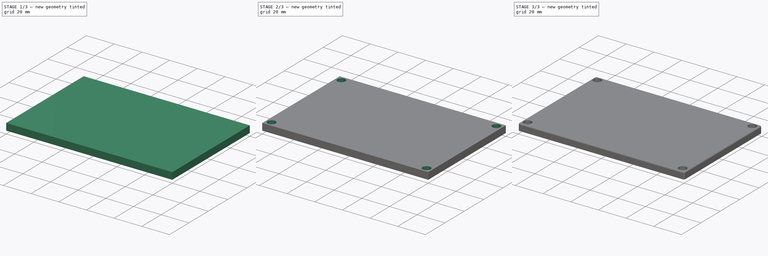
[diagram: build sequence overview — one tinted view per stage of 3, left to right]
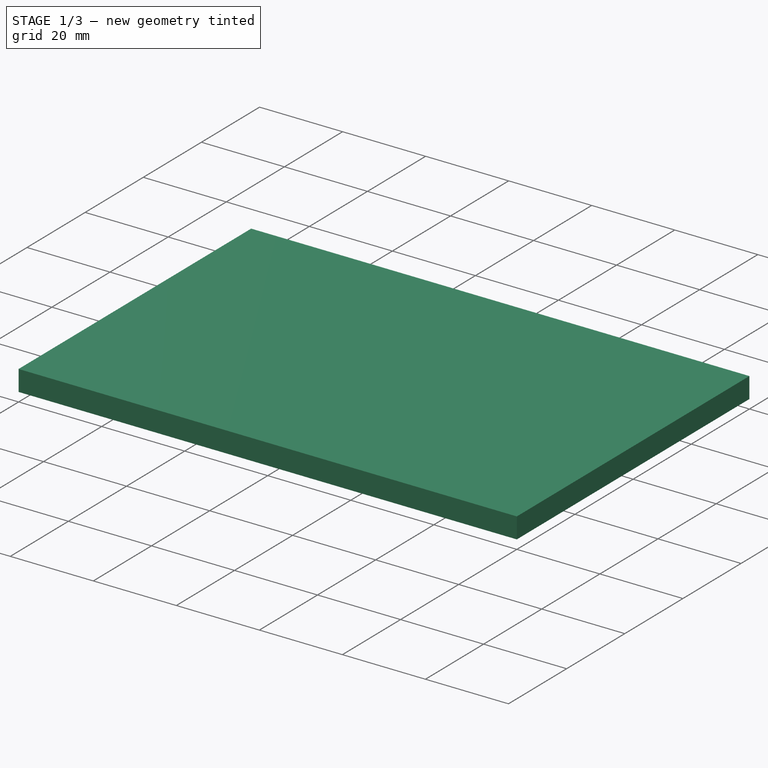
[diagram: stage 1 of 3 — iso view after this stage's code; geometry added in this stage tinted green]
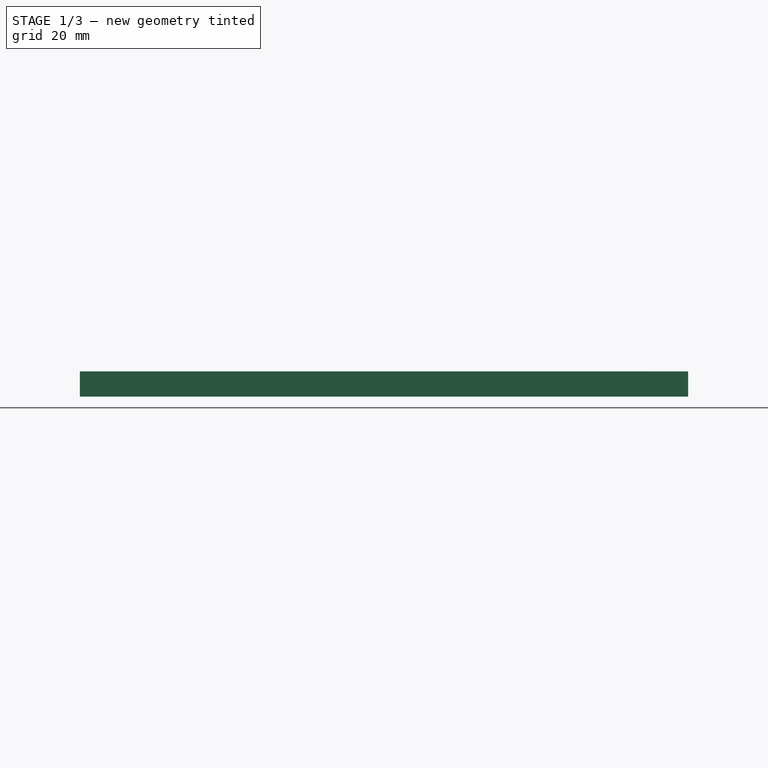
[diagram: stage 1 of 3 — front view after this stage's code; geometry added in this stage tinted green]
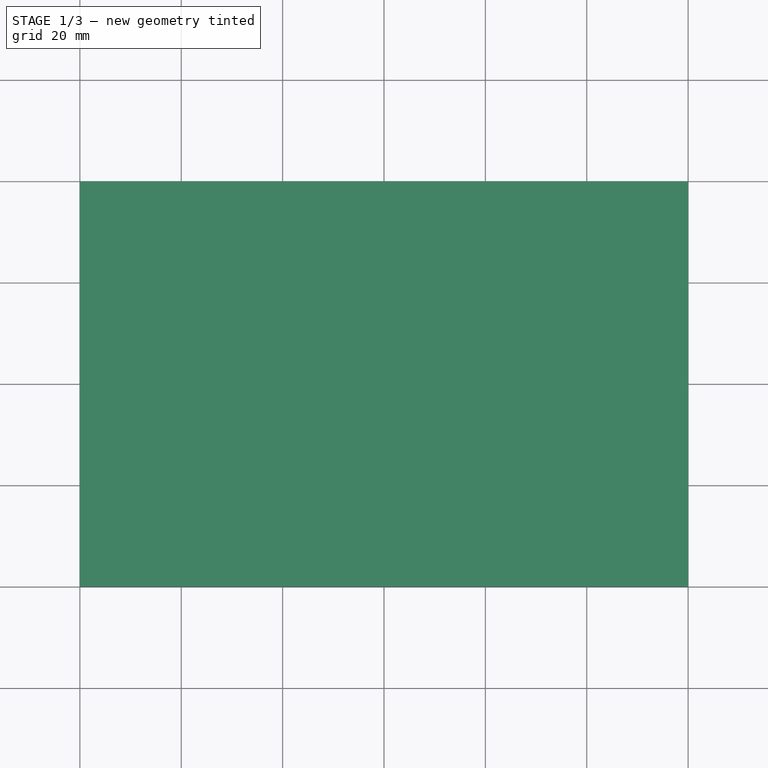
[diagram: stage 1 of 3 — top view after this stage's code; geometry added in this stage tinted green]
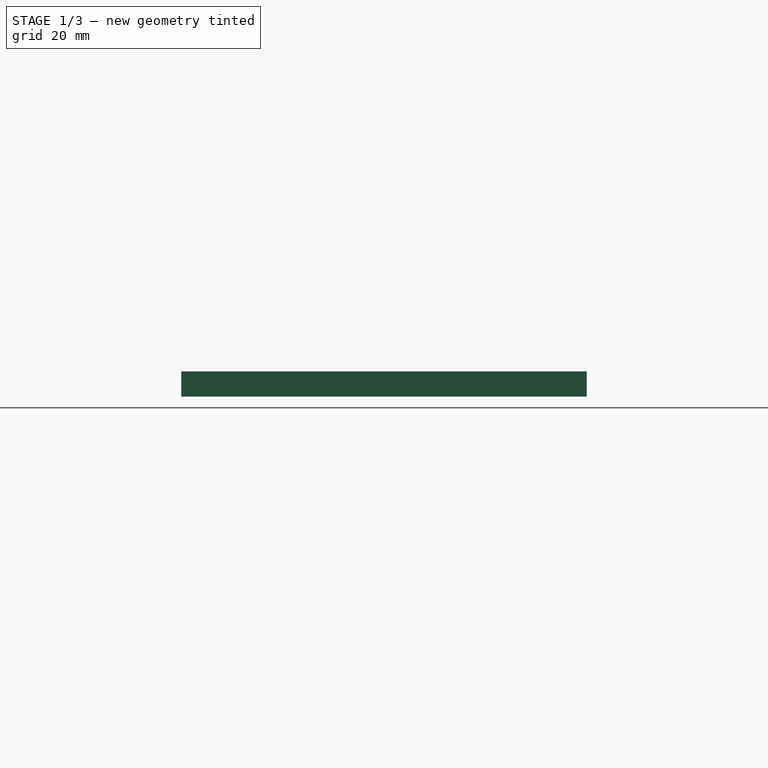
[diagram: stage 1 of 3 — right view after this stage's code; geometry added in this stage tinted green]
FCSTD DOCUMENT  (FreeCAD 0.18R4 (GitTag))
Label: case top
License: All rights reserved
LicenseURL: http://en.wikipedia.org/wiki/All_rights_reserved
objects: Sketcher::SketchObject×4, PartDesign::Pad×2, PartDesign::Pocket×2, PartDesign::Fillet×1, PartDesign::Body×1
note: 14 computed .brp shape members not serialized (recipe doc carries the construction recipe); baked Part::Feature solids carry a one-line shape summary decoded from their .brp

FEATURE [Sketcher::SketchObject] Sketch
  MapMode = 5
  Support = -> [XY_Plane]
  sketch-geometry (4):
    g0: LineSegment StartX=-60 StartY=40 StartZ=0 EndX=60 EndY=40 EndZ=0
    g1: LineSegment StartX=60 StartY=40 StartZ=0 EndX=60 EndY=-40 EndZ=0
    g2: LineSegment StartX=60 StartY=-40 StartZ=0 EndX=-60 EndY=-40 EndZ=0
    g3: LineSegment StartX=-60 StartY=-40 StartZ=0 EndX=-60 EndY=40 EndZ=0
  constraints (11):
    c: Coincident(g0,g1)
    c: Coincident(g1,g2)
    c: Coincident(g2,g3)
    c: Coincident(g3,g0)
    c: Horizontal(g0)
    c: Horizontal(g2)
    c: Vertical(g1)
    c: Vertical(g3)
    c: DistanceY(g3,g3) = 80
    c: DistanceX(g0,g0) = 120
    c: Symmetric(g0,g1,g-1)
FEATURE [PartDesign::Pad] Pad  label="Main Body"
  Length = 5
  Length2 = 100
  Profile = -> Sketch
  Type = 0
FEATURE [Sketcher::SketchObject] Sketch001
  MapMode = 5
  Placement = pos=(0,0,0) rot=(1,0,0;3.14159rad)
  Support = -> [Pad]
  sketch-geometry (12):
    g0: LineSegment StartX=56.1 StartY=29.6 StartZ=0 EndX=49.6 EndY=36.1 EndZ=0
    g1: LineSegment StartX=49.6 StartY=36.1 StartZ=0 EndX=-49.6 EndY=36.1 EndZ=0
    g2: LineSegment StartX=-49.6 StartY=36.1 StartZ=0 EndX=-56.1 EndY=29.6 EndZ=0
    g3: LineSegment StartX=-56.1 StartY=29.6 StartZ=0 EndX=-56.1 EndY=-29.6 EndZ=0
    g4: LineSegment StartX=-56.1 StartY=-29.6 StartZ=0 EndX=-49.6 EndY=-36.1 EndZ=0
    g5: LineSegment StartX=-49.6 StartY=-36.1 StartZ=0 EndX=49.6 EndY=-36.1 EndZ=0
    g6: LineSegment StartX=49.6 StartY=-36.1 StartZ=0 EndX=56.1 EndY=-29.6 EndZ=0
    g7: LineSegment StartX=56.1 StartY=-29.6 StartZ=0 EndX=56.1 EndY=29.6 EndZ=0
    g8: Circle CenterX=56 CenterY=36 CenterZ=0 NormalX=0 NormalY=0 NormalZ=1 AngleXU=0 Radius=1.5
    g9: Circle CenterX=56 CenterY=-36 CenterZ=0 NormalX=0 NormalY=0 NormalZ=1 AngleXU=0 Radius=1.5
    g10: Circle CenterX=-56 CenterY=36 CenterZ=0 NormalX=0 NormalY=0 NormalZ=1 AngleXU=0 Radius=1.5
    g11: Circle CenterX=-56 CenterY=-36 CenterZ=0 NormalX=0 NormalY=0 NormalZ=1 AngleXU=0 Radius=1.5
  constraints (27):
    c: Coincident(g0,g1)
    c: Coincident(g1,g2)
    c: Coincident(g2,g3)
    c: Coincident(g3,g4)
    c: Coincident(g4,g5)
    c: Coincident(g5,g6)
    c: Coincident(g6,g7)
    c: Coincident(g7,g0)
    c: DistanceX(g0) = 56.1
    c: DistanceY(g0) = 29.6
    c: DistanceX(g0) = 49.6
    c: DistanceY(g0) = 36.1
    c: Symmetric(g0,g6,g-1)
    c: Symmetric(g0,g5,g-1)
    c: Symmetric(g6,g3,g-2)
    c: Symmetric(g4,g5,g-2)
    c: Symmetric(g1,g4,g-1)
    c: Symmetric(g2,g3,g-1)
    c: Radius(g8) = 1.5
    c: DistanceX(g8) = 56
    c: DistanceY(g8) = 36
    c: Equal(g8,g9) = 1.5
    c: Equal(g8,g10) = 1.5
    c: Equal(g8,g11) = 1.5
    c: Symmetric(g8,g9,g-1)
    c: Symmetric(g9,g11,g-2)
    c: Symmetric(g11,g10,g-1)
FEATURE [PartDesign::Pocket] Pocket  label="Screws and Inlay"
  BaseFeature = -> Pad
  Length = 3
  Length2 = 100
  Profile = -> Sketch001
  Type = 0
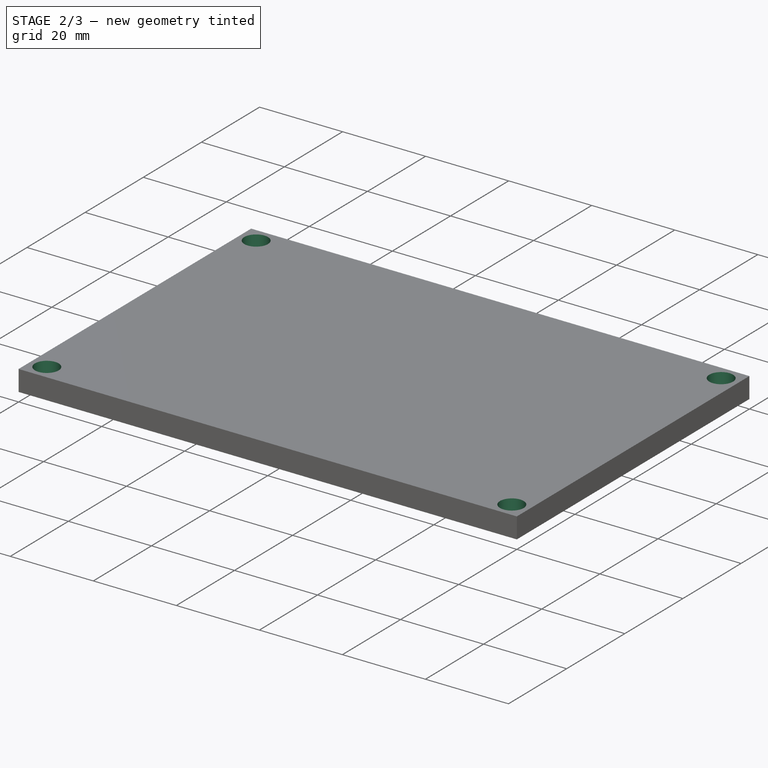
[diagram: stage 2 of 3 — iso view after this stage's code; geometry added in this stage tinted green]
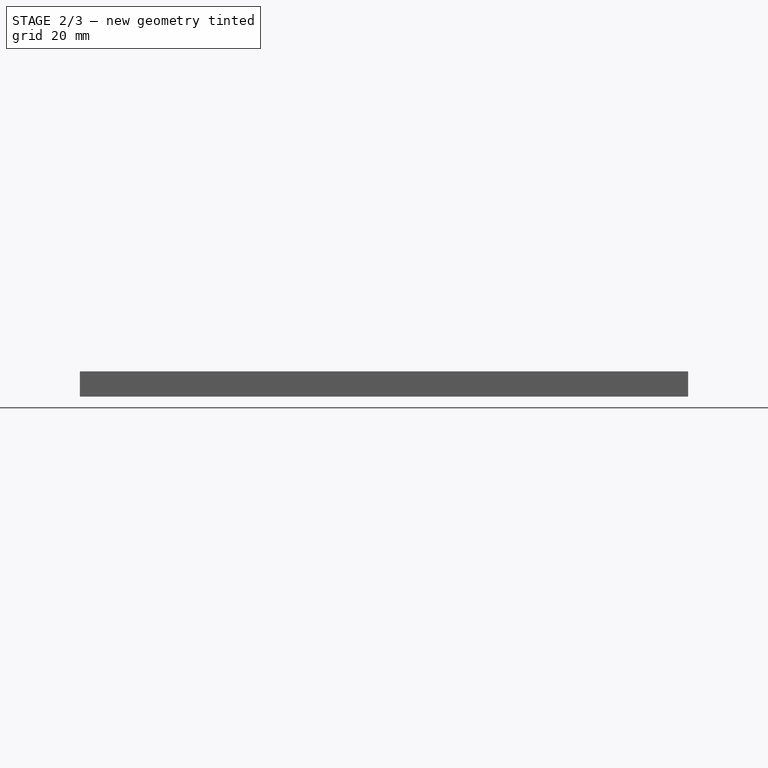
[diagram: stage 2 of 3 — front view after this stage's code; geometry added in this stage tinted green]
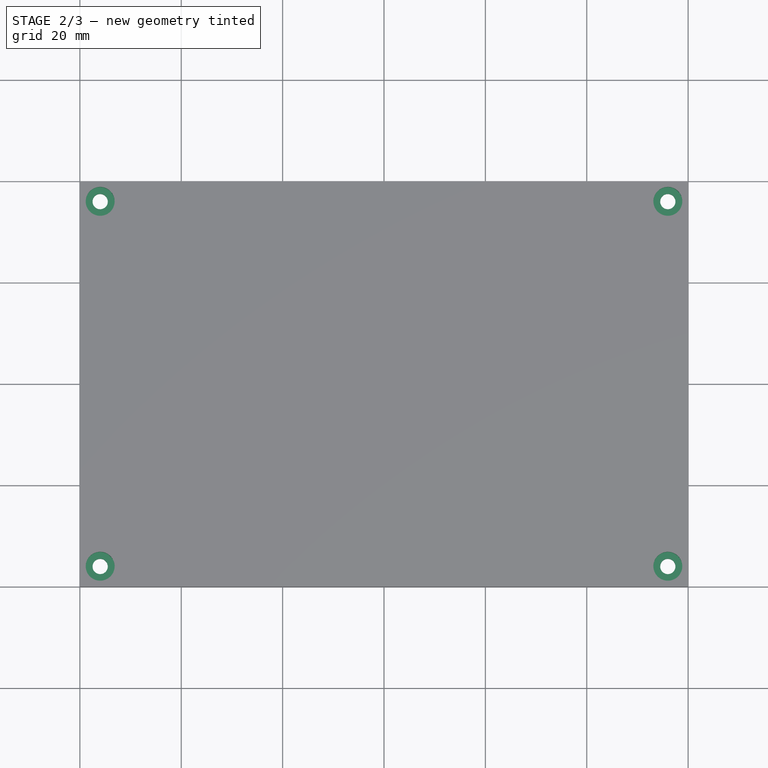
[diagram: stage 2 of 3 — top view after this stage's code; geometry added in this stage tinted green]
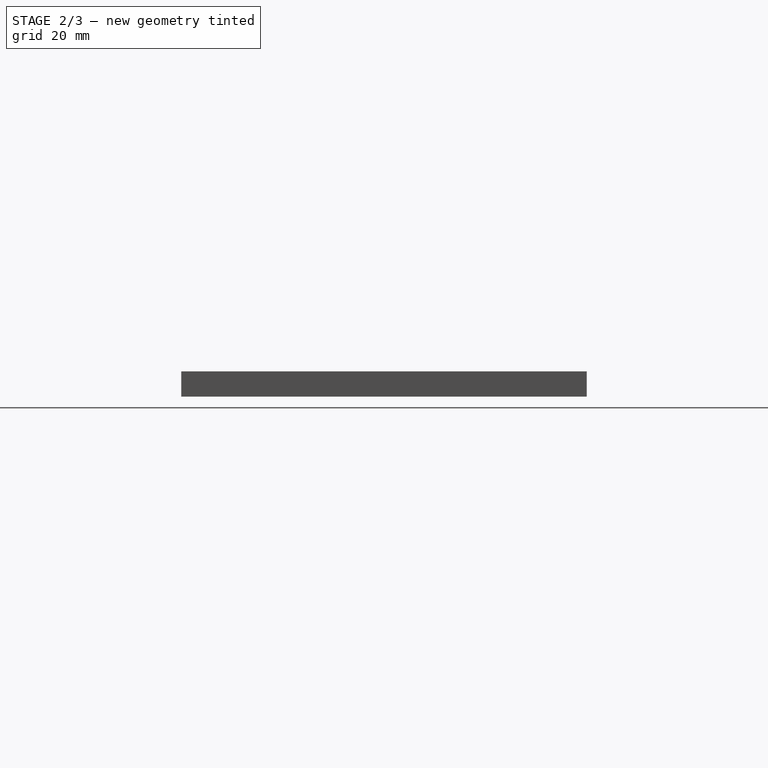
[diagram: stage 2 of 3 — right view after this stage's code; geometry added in this stage tinted green]
FEATURE [Sketcher::SketchObject] Sketch002
  MapMode = 5
  Placement = pos=(0,0,5) rot=(0,0,1;0rad)
  Support = -> [Pocket]
  sketch-geometry (4):
    g0: Circle CenterX=56 CenterY=36 CenterZ=0 NormalX=0 NormalY=0 NormalZ=1 AngleXU=0 Radius=2.85
    g1: Circle CenterX=56 CenterY=-36 CenterZ=0 NormalX=0 NormalY=0 NormalZ=1 AngleXU=0 Radius=2.85
    g2: Circle CenterX=-56 CenterY=36 CenterZ=0 NormalX=0 NormalY=0 NormalZ=1 AngleXU=0 Radius=2.85
    g3: Circle CenterX=-56 CenterY=-36 CenterZ=0 NormalX=0 NormalY=0 NormalZ=1 AngleXU=0 Radius=2.85
  constraints (9):
    c: Radius(g0) = 2.85
    c: DistanceX(g0) = 56
    c: DistanceY(g0) = 36
    c: Equal(g0,g1) = 2.55
    c: Equal(g0,g2) = 2.55
    c: Equal(g0,g3) = 2.55
    c: Symmetric(g0,g1,g-1)
    c: Symmetric(g1,g3,g-2)
    c: Symmetric(g3,g2,g-1)
FEATURE [PartDesign::Pocket] Pocket001  label="Screws Top"
  BaseFeature = -> Pocket
  Length = 3
  Length2 = 100
  Profile = -> Sketch002
  Type = 0
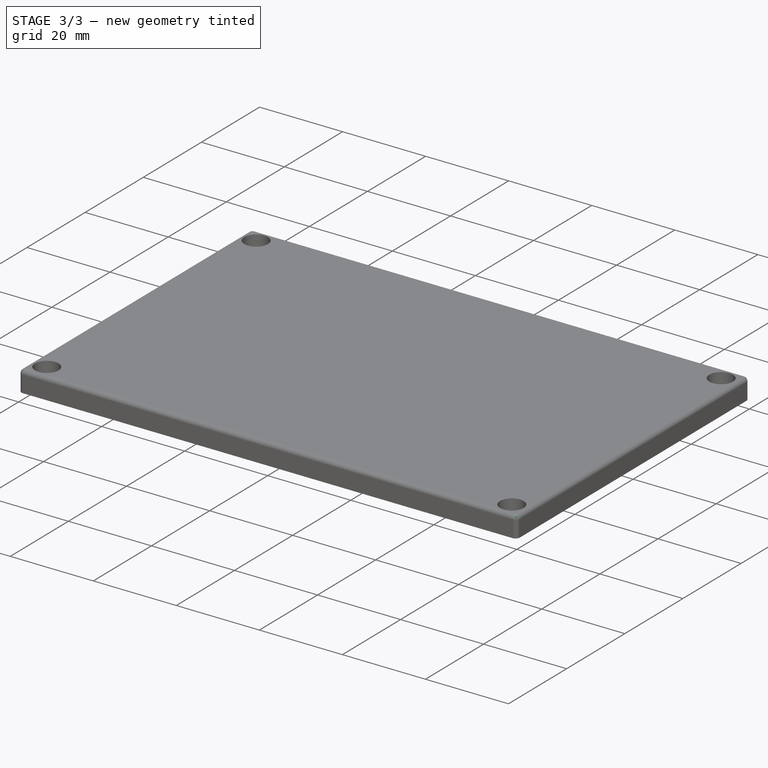
[diagram: stage 3 of 3 — iso view after this stage's code; geometry added in this stage tinted green]
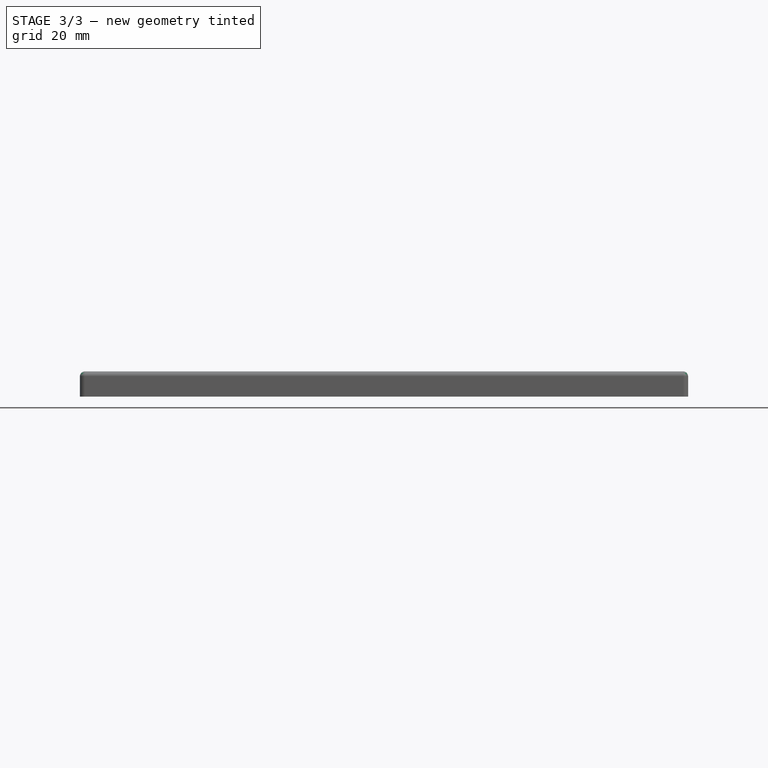
[diagram: stage 3 of 3 — front view after this stage's code; geometry added in this stage tinted green]
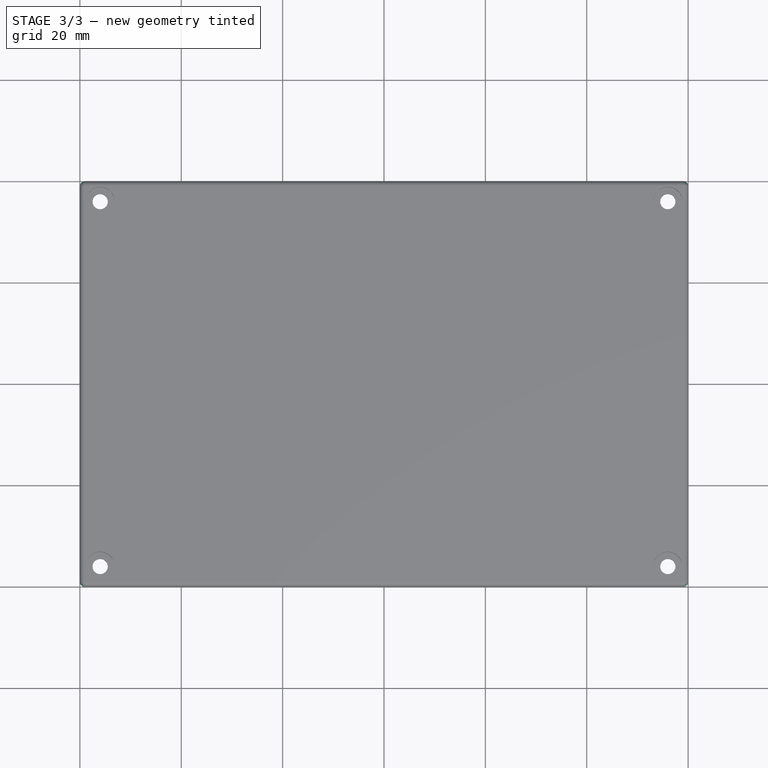
[diagram: stage 3 of 3 — top view after this stage's code; geometry added in this stage tinted green]
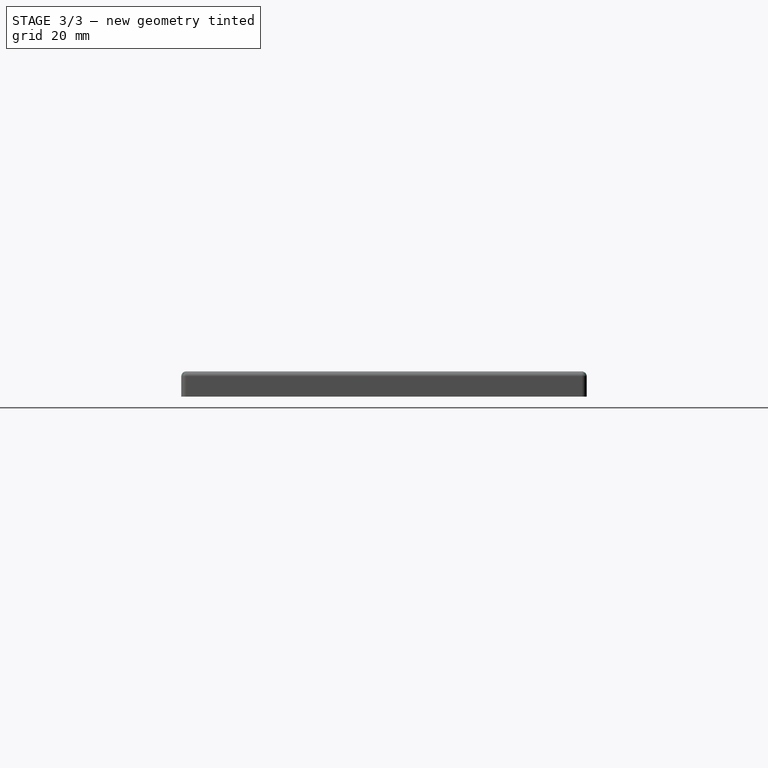
[diagram: stage 3 of 3 — right view after this stage's code; geometry added in this stage tinted green]
FEATURE [PartDesign::Fillet] Fillet  label="Round Corners"
  Base = -> Pocket001 [Edge8,Edge24,Edge5,Edge7,Edge4,Edge10,Edge2,Edge1]
  BaseFeature = -> Pocket001
  Radius = 1
FEATURE [Sketcher::SketchObject] CopySketch003
  Placement = pos=(0,0,3) rot=(1,0,0;3.14159rad)
  sketch-geometry (16):
    g0: LineSegment StartX=-48.9 StartY=33.9 StartZ=0 EndX=48.9 EndY=33.9 EndZ=0
    g1: LineSegment StartX=48.9 StartY=33.9 StartZ=0 EndX=53.9 EndY=28.9 EndZ=0
    g2: LineSegment StartX=53.9 StartY=28.9 StartZ=0 EndX=53.9 EndY=-28.9 EndZ=0
    g3: LineSegment StartX=53.9 StartY=-28.9 StartZ=0 EndX=48.9 EndY=-33.9 EndZ=0
    g4: LineSegment StartX=48.9 StartY=-33.9 StartZ=0 EndX=-48.9 EndY=-33.9 EndZ=0
    g5: LineSegment StartX=-48.9 StartY=-33.9 StartZ=0 EndX=-53.9 EndY=-28.9 EndZ=0
    g6: LineSegment StartX=-53.9 StartY=-28.9 StartZ=0 EndX=-53.9 EndY=28.9 EndZ=0
    g7: LineSegment StartX=-53.9 StartY=28.9 StartZ=0 EndX=-48.9 EndY=33.9 EndZ=0
    g8: LineSegment StartX=-48.2 StartY=31.8 StartZ=0 EndX=48.2 EndY=31.8 EndZ=0
    g9: LineSegment StartX=48.2 StartY=31.8 StartZ=0 EndX=51.8 EndY=28.2 EndZ=0
    g10: LineSegment StartX=51.8 StartY=28.2 StartZ=0 EndX=51.8 EndY=-28.2 EndZ=0
    g11: LineSegment StartX=51.8 StartY=-28.2 StartZ=0 EndX=48.2 EndY=-31.8 EndZ=0
    g12: LineSegment StartX=48.2 StartY=-31.8 StartZ=0 EndX=-48.2 EndY=-31.8 EndZ=0
    g13: LineSegment StartX=-48.2 StartY=-31.8 StartZ=0 EndX=-51.8 EndY=-28.2 EndZ=0
    g14: LineSegment StartX=-51.8 StartY=-28.2 StartZ=0 EndX=-51.8 EndY=28.2 EndZ=0
    g15: LineSegment StartX=-51.8 StartY=28.2 StartZ=0 EndX=-48.2 EndY=31.8 EndZ=0
  constraints (36):
    c: Coincident(g0,g1)
    c: Coincident(g1,g2)
    c: Coincident(g2,g3)
    c: Coincident(g3,g4)
    c: Coincident(g4,g5)
    c: Coincident(g5,g6)
    c: Coincident(g6,g7)
    c: Coincident(g7,g0)
    c: DistanceX(g1) = 53.9
    c: DistanceY(g1) = 28.9
    c: DistanceX(g0) = 48.9
    c: DistanceY(g0) = 33.9
    c: Symmetric(g0,g0,g-2)
    c: Symmetric(g1,g6,g-2)
    c: Symmetric(g6,g5,g-1)
    c: Symmetric(g0,g4,g-1)
    c: Symmetric(g5,g2,g-2)
    c: Symmetric(g4,g3,g-2)
    c: Coincident(g8,g9)
    c: Coincident(g9,g10)
    c: Coincident(g10,g11)
    c: Coincident(g11,g12)
    c: Coincident(g12,g13)
    c: Coincident(g13,g14)
    c: Coincident(g14,g15)
    c: Coincident(g15,g8)
    c: DistanceX(g8) = -48.2
    c: DistanceY(g8) = 31.8
    c: DistanceX(g14) = -51.8
    c: DistanceY(g14) = 28.2
    c: Symmetric(g14,g13,g-1)
    c: Symmetric(g8,g12,g-1)
    c: Symmetric(g13,g10,g-2)
    c: Symmetric(g12,g11,g-2)
    c: Symmetric(g10,g9,g-1)
    c: Symmetric(g11,g8,g-1)
FEATURE [PartDesign::Pad] Pad001  label="Inner Sealing"
  BaseFeature = -> Fillet
  Length = 3
  Length2 = 100
  Profile = -> CopySketch003
  Type = 0
FEATURE [PartDesign::Body] Body
  Group = -> [Sketch,Pad,Sketch001,Pocket,Sketch002,Pocket001,Fillet,Pad001]
  Origin = -> Origin
  Tip = -> Pad001
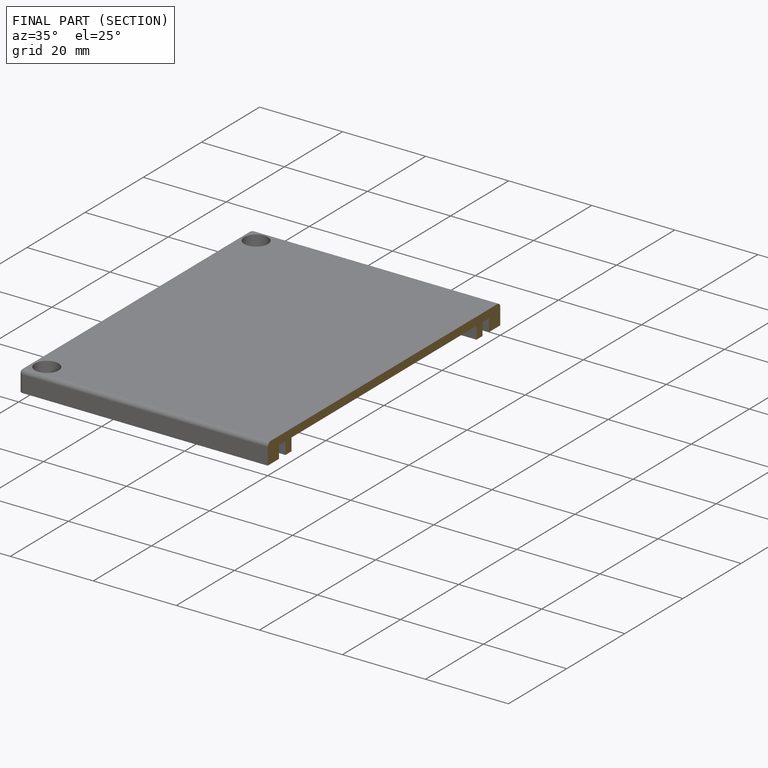
[diagram: finished part — half-section view (interior)]
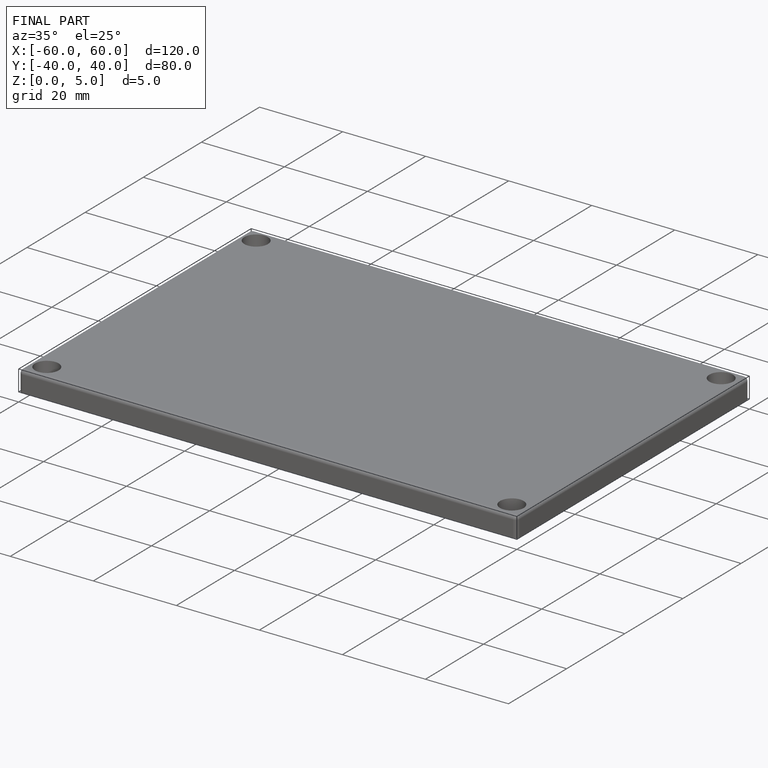
[diagram: finished part — iso view with bounding-box wireframe]
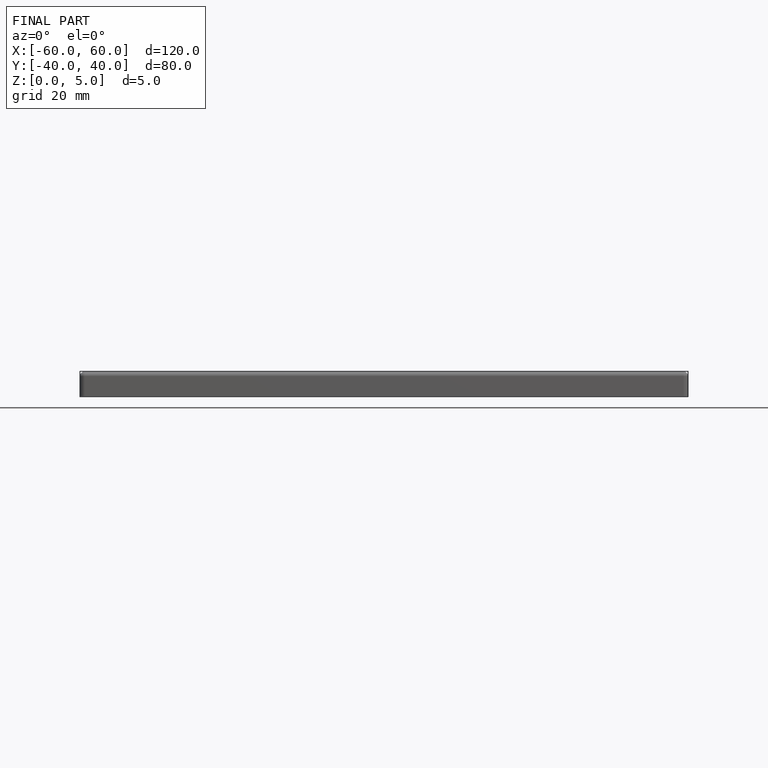
[diagram: finished part — front view with bounding-box wireframe]
